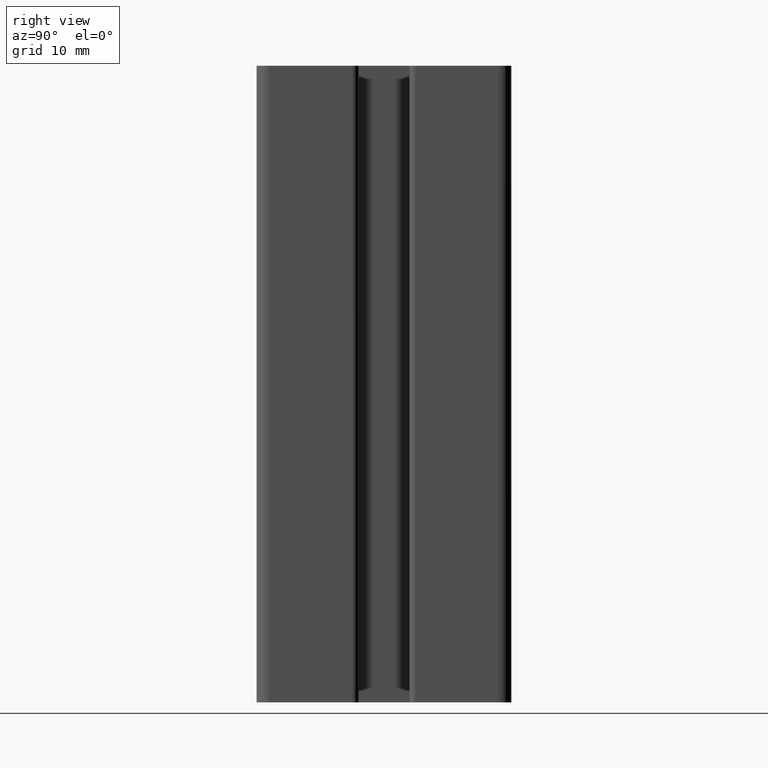
[diagram: clean part render]
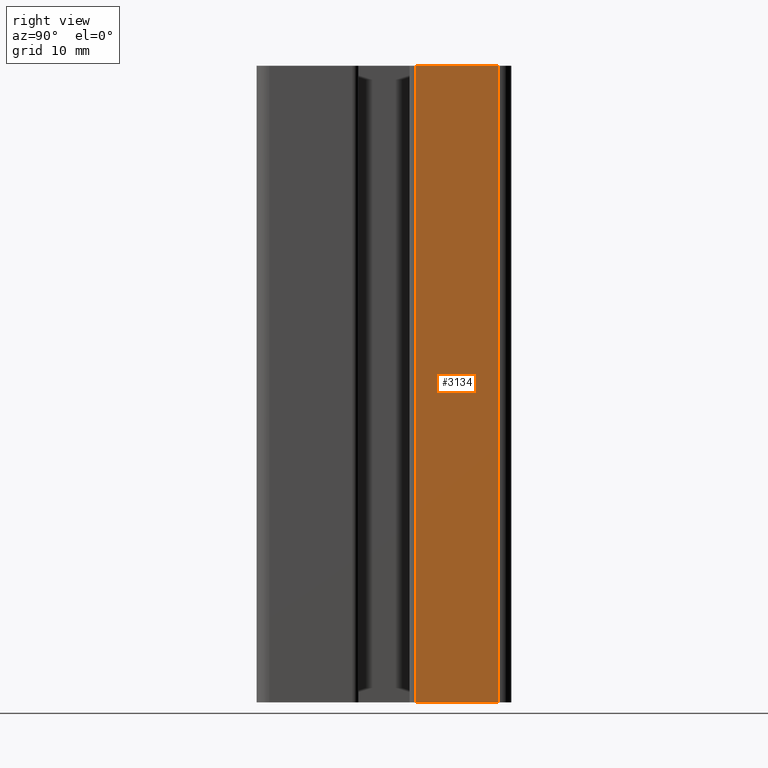
[diagram: same view with one face highlighted and labeled with its STEP entity id]
A machine part, right view. The second image highlights one B-rep face of the part: STEP entity #3134.
In plain terms, the highlighted planar face has unit normal (1, 0, 0).
Its self-contained STEP definition (entity closure, byte-faithful):
#99=PLANE('',#3448);
#255=FACE_OUTER_BOUND('',#416,.T.);
#416=EDGE_LOOP('',(#2736,#2737,#2738,#2739));
#677=LINE('',#5162,#986);
#719=LINE('',#5282,#1028);
#729=LINE('',#5313,#1038);
#730=LINE('',#5315,#1039);
#986=VECTOR('',#4224,100.);
#1028=VECTOR('',#4344,13.0050990029409);
#1038=VECTOR('',#4376,100.);
#1039=VECTOR('',#4379,13.0050990029409);
#1456=VERTEX_POINT('',#5160);
#1457=VERTEX_POINT('',#5161);
#1496=VERTEX_POINT('',#5280);
#1506=VERTEX_POINT('',#5311);
#1891=EDGE_CURVE('',#1456,#1457,#677,.T.);
#1952=EDGE_CURVE('',#1496,#1457,#719,.T.);
#1968=EDGE_CURVE('',#1496,#1506,#729,.T.);
#1969=EDGE_CURVE('',#1506,#1456,#730,.T.);
#2736=ORIENTED_EDGE('',*,*,#1891,.T.);
#2737=ORIENTED_EDGE('',*,*,#1952,.F.);
#2738=ORIENTED_EDGE('',*,*,#1968,.T.);
#2739=ORIENTED_EDGE('',*,*,#1969,.T.);
#3134=ADVANCED_FACE('',(#255),#99,.T.);
#3448=AXIS2_PLACEMENT_3D('',#5314,#4377,#4378);
#4224=DIRECTION('',(0.,0.,-1.));
#4344=DIRECTION('',(0.,-1.,0.));
#4376=DIRECTION('',(0.,0.,1.));
#4377=DIRECTION('center_axis',(1.,0.,0.));
#4378=DIRECTION('ref_axis',(0.,1.,0.));
#4379=DIRECTION('',(0.,-1.,0.));
#5160=CARTESIAN_POINT('',(20.,4.99490099705906,100.));
#5161=CARTESIAN_POINT('',(20.,4.99490099705906,0.));
#5162=CARTESIAN_POINT('',(20.,4.99490099705906,0.));
#5280=CARTESIAN_POINT('',(20.,18.,0.));
#5282=CARTESIAN_POINT('',(20.,-9.,0.));
#5311=CARTESIAN_POINT('',(20.,18.,100.));
#5313=CARTESIAN_POINT('',(20.,18.,0.));
#5314=CARTESIAN_POINT('Origin',(20.,-18.,0.));
#5315=CARTESIAN_POINT('',(20.,-9.,100.));